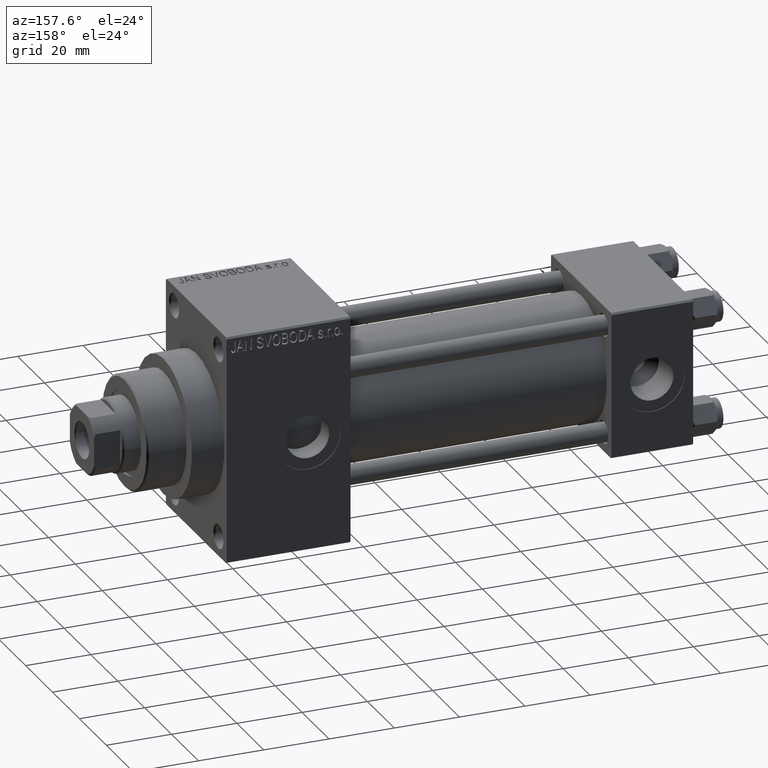
[diagram: clean part render]
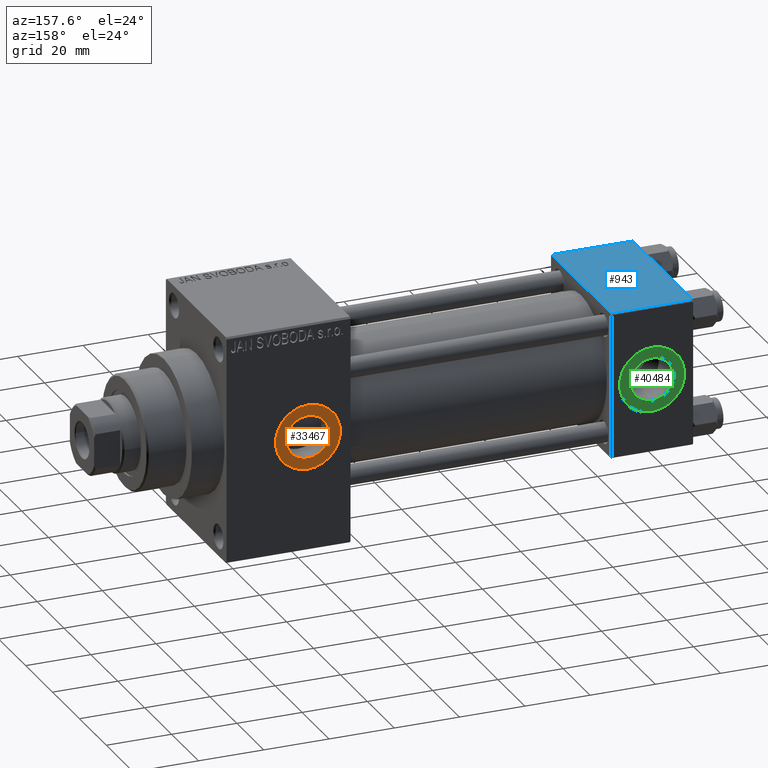
[diagram: same view with three faces highlighted in distinct colors, each labeled with its STEP entity id]
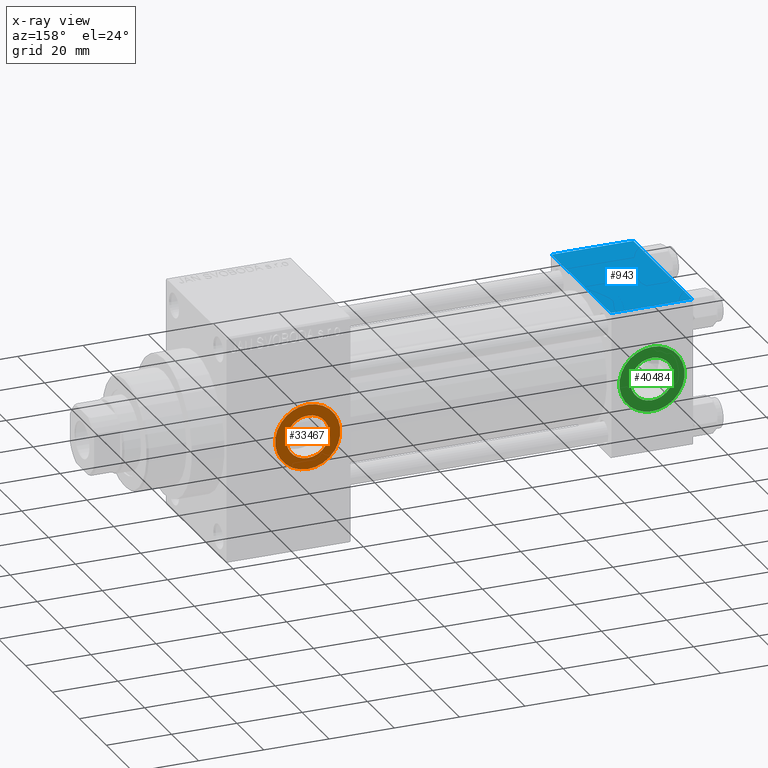
[diagram: x-ray of the same camera — body ghosted, the three highlighted faces saturated]
A machine part, auxiliary view with three faces highlighted in distinct colors.
The next image is the same camera in x-ray (body ghosted, the three faces saturated) — at least one of them is partly hidden behind the body in this view.
Their STEP definitions:

[orange] entity #33467 — the highlighted planar face has unit normal (0, 1, 0).
#175 = CIRCLE ( 'NONE', #31887, 9.999999999999994671 ) ;
#730 = VERTEX_POINT ( 'NONE', #25450 ) ;
#4194 = CARTESIAN_POINT ( 'NONE',  ( 118.0000000000000142, 22.29999999999999716, 0.000000000000000000 ) ) ;
#4254 = AXIS2_PLACEMENT_3D ( 'NONE', #10492, #18920, #37290 ) ;
#4401 = CIRCLE ( 'NONE', #27398, 6.580000000000002736 ) ;
#7020 = FACE_BOUND ( 'NONE', #15501, .T. ) ;
#7251 = AXIS2_PLACEMENT_3D ( 'NONE', #4194, #19321, #30735 ) ;
#7750 = FACE_OUTER_BOUND ( 'NONE', #36023, .T. ) ;
#8594 = EDGE_CURVE ( 'NONE', #730, #30781, #4401, .T. ) ;
#9133 = ORIENTED_EDGE ( 'NONE', *, *, #30174, .T. ) ;
#10479 = CARTESIAN_POINT ( 'NONE',  ( 118.0000000000000142, 22.29999999999999716, 6.580000000000002736 ) ) ;
#10492 = CARTESIAN_POINT ( 'NONE',  ( 118.0000000000000142, 22.29999999999999716, 0.000000000000000000 ) ) ;
#10698 = EDGE_CURVE ( 'NONE', #31324, #44649, #39338, .T. ) ;
#15501 = EDGE_LOOP ( 'NONE', ( #33674, #17588 ) ) ;
#17588 = ORIENTED_EDGE ( 'NONE', *, *, #8594, .F. ) ;
#17917 = AXIS2_PLACEMENT_3D ( 'NONE', #31061, #32263, #24582 ) ;
#18920 = DIRECTION ( 'NONE',  ( 0.000000000000000000, 1.000000000000000000, 0.000000000000000000 ) ) ;
#19041 = CARTESIAN_POINT ( 'NONE',  ( 118.0000000000000142, 22.29999999999999716, 0.000000000000000000 ) ) ;
#19044 = CARTESIAN_POINT ( 'NONE',  ( 118.0000000000000142, 22.29999999999999716, -9.999999999999994671 ) ) ;
#19321 = DIRECTION ( 'NONE',  ( 0.000000000000000000, 1.000000000000000000, 0.000000000000000000 ) ) ;
#20545 = DIRECTION ( 'NONE',  ( 0.000000000000000000, 0.000000000000000000, 1.000000000000000000 ) ) ;
#20789 = CARTESIAN_POINT ( 'NONE',  ( 118.0000000000000142, 22.29999999999999716, 0.000000000000000000 ) ) ;
#22200 = CARTESIAN_POINT ( 'NONE',  ( 118.0000000000000142, 22.29999999999999716, 9.999999999999994671 ) ) ;
#22757 = DIRECTION ( 'NONE',  ( 0.000000000000000000, 1.000000000000000000, 0.000000000000000000 ) ) ;
#24582 = DIRECTION ( 'NONE',  ( 0.000000000000000000, 0.000000000000000000, 1.000000000000000000 ) ) ;
#25450 = CARTESIAN_POINT ( 'NONE',  ( 118.0000000000000142, 22.29999999999999716, -6.580000000000002736 ) ) ;
#27398 = AXIS2_PLACEMENT_3D ( 'NONE', #19041, #22757, #34685 ) ;
#27757 = DIRECTION ( 'NONE',  ( 0.000000000000000000, 1.000000000000000000, 0.000000000000000000 ) ) ;
#30063 = EDGE_CURVE ( 'NONE', #30781, #730, #35018, .T. ) ;
#30174 = EDGE_CURVE ( 'NONE', #44649, #31324, #175, .T. ) ;
#30735 = DIRECTION ( 'NONE',  ( 0.000000000000000000, 0.000000000000000000, 1.000000000000000000 ) ) ;
#30781 = VERTEX_POINT ( 'NONE', #10479 ) ;
#31061 = CARTESIAN_POINT ( 'NONE',  ( 118.0000000000000142, 22.29999999999999716, 0.000000000000000000 ) ) ;
#31324 = VERTEX_POINT ( 'NONE', #22200 ) ;
#31887 = AXIS2_PLACEMENT_3D ( 'NONE', #20789, #27757, #20545 ) ;
#32263 = DIRECTION ( 'NONE',  ( 0.000000000000000000, 1.000000000000000000, 0.000000000000000000 ) ) ;
#33467 = ADVANCED_FACE ( 'NONE', ( #7020, #7750 ), #45222, .T. ) ;
#33656 = ORIENTED_EDGE ( 'NONE', *, *, #10698, .T. ) ;
#33674 = ORIENTED_EDGE ( 'NONE', *, *, #30063, .F. ) ;
#34685 = DIRECTION ( 'NONE',  ( 0.000000000000000000, 0.000000000000000000, 1.000000000000000000 ) ) ;
#35018 = CIRCLE ( 'NONE', #7251, 6.580000000000002736 ) ;
#36023 = EDGE_LOOP ( 'NONE', ( #33656, #9133 ) ) ;
#37290 = DIRECTION ( 'NONE',  ( 0.000000000000000000, -0.000000000000000000, 1.000000000000000000 ) ) ;
#39338 = CIRCLE ( 'NONE', #17917, 9.999999999999994671 ) ;
#44649 = VERTEX_POINT ( 'NONE', #19044 ) ;
#45222 = PLANE ( 'NONE',  #4254 ) ;

[blue] entity #943 — the highlighted planar face has unit normal (0, 0, -1).
#943 = ADVANCED_FACE ( 'NONE', ( #3356 ), #48756, .F. ) ;
#1035 = CARTESIAN_POINT ( 'NONE',  ( 25.00000000000000000, -21.99999999999997868, 22.50000000000000000 ) ) ;
#1714 = EDGE_CURVE ( 'NONE', #2446, #43139, #33952, .T. ) ;
#2446 = VERTEX_POINT ( 'NONE', #19803 ) ;
#3356 = FACE_OUTER_BOUND ( 'NONE', #43885, .T. ) ;
#4077 = CARTESIAN_POINT ( 'NONE',  ( 0.000000000000000000, 21.99999999999999289, 22.50000000000000355 ) ) ;
#5180 = VERTEX_POINT ( 'NONE', #4077 ) ;
#6374 = VECTOR ( 'NONE', #25374, 1000.000000000000000 ) ;
#7815 = CARTESIAN_POINT ( 'NONE',  ( 25.00000000000000000, 22.50000000000000000, 22.50000000000000355 ) ) ;
#8886 = ORIENTED_EDGE ( 'NONE', *, *, #24721, .T. ) ;
#10831 = AXIS2_PLACEMENT_3D ( 'NONE', #7815, #45280, #29649 ) ;
#10873 = DIRECTION ( 'NONE',  ( 0.000000000000000000, -1.000000000000000000, -7.709882115452476934E-17 ) ) ;
#12645 = DIRECTION ( 'NONE',  ( -1.000000000000000000, 0.000000000000000000, 0.000000000000000000 ) ) ;
#12891 = CARTESIAN_POINT ( 'NONE',  ( 0.000000000000000000, 21.99999999999999289, 22.50000000000000355 ) ) ;
#14323 = VECTOR ( 'NONE', #10873, 1000.000000000000000 ) ;
#14942 = CARTESIAN_POINT ( 'NONE',  ( 25.00000000000000000, 21.99999999999999289, 22.50000000000000355 ) ) ;
#18798 = CARTESIAN_POINT ( 'NONE',  ( 25.00000000000000000, -21.99999999999999289, 22.50000000000000000 ) ) ;
#19803 = CARTESIAN_POINT ( 'NONE',  ( 0.000000000000000000, -21.99999999999997868, 22.50000000000000000 ) ) ;
#22452 = ORIENTED_EDGE ( 'NONE', *, *, #1714, .T. ) ;
#23088 = ORIENTED_EDGE ( 'NONE', *, *, #28243, .T. ) ;
#23420 = EDGE_CURVE ( 'NONE', #37392, #43139, #37272, .T. ) ;
#24721 = EDGE_CURVE ( 'NONE', #37392, #5180, #39191, .T. ) ;
#25374 = DIRECTION ( 'NONE',  ( 0.000000000000000000, -1.000000000000000000, -7.709882115452476934E-17 ) ) ;
#28243 = EDGE_CURVE ( 'NONE', #5180, #2446, #40908, .T. ) ;
#29649 = DIRECTION ( 'NONE',  ( 0.000000000000000000, 1.000000000000000000, 7.709882115452476934E-17 ) ) ;
#33700 = DIRECTION ( 'NONE',  ( 1.000000000000000000, 0.000000000000000000, 0.000000000000000000 ) ) ;
#33952 = LINE ( 'NONE', #18798, #40992 ) ;
#37272 = LINE ( 'NONE', #48934, #6374 ) ;
#37392 = VERTEX_POINT ( 'NONE', #14942 ) ;
#39191 = LINE ( 'NONE', #12891, #42882 ) ;
#40908 = LINE ( 'NONE', #44626, #14323 ) ;
#40992 = VECTOR ( 'NONE', #33700, 1000.000000000000000 ) ;
#42882 = VECTOR ( 'NONE', #12645, 1000.000000000000000 ) ;
#42905 = ORIENTED_EDGE ( 'NONE', *, *, #23420, .F. ) ;
#43139 = VERTEX_POINT ( 'NONE', #1035 ) ;
#43885 = EDGE_LOOP ( 'NONE', ( #23088, #22452, #42905, #8886 ) ) ;
#44626 = CARTESIAN_POINT ( 'NONE',  ( 0.000000000000000000, 22.50000000000000000, 22.50000000000000355 ) ) ;
#45280 = DIRECTION ( 'NONE',  ( 0.000000000000000000, 7.709882115452476934E-17, -1.000000000000000000 ) ) ;
#48756 = PLANE ( 'NONE',  #10831 ) ;
#48934 = CARTESIAN_POINT ( 'NONE',  ( 25.00000000000000000, 22.50000000000000000, 22.50000000000000355 ) ) ;

[green] entity #40484 — the highlighted planar face has unit normal (0, 1, 0).
#3150 = EDGE_CURVE ( 'NONE', #38841, #45043, #10945, .T. ) ;
#3438 = DIRECTION ( 'NONE',  ( 0.000000000000000000, 1.000000000000000000, 0.000000000000000000 ) ) ;
#4350 = CARTESIAN_POINT ( 'NONE',  ( 12.50000000000000000, 22.30000000000000071, 0.000000000000000000 ) ) ;
#5554 = VERTEX_POINT ( 'NONE', #21160 ) ;
#5775 = DIRECTION ( 'NONE',  ( 0.000000000000000000, 0.000000000000000000, 1.000000000000000000 ) ) ;
#7248 = DIRECTION ( 'NONE',  ( 0.000000000000000000, 1.000000000000000000, 0.000000000000000000 ) ) ;
#7644 = DIRECTION ( 'NONE',  ( 0.000000000000000000, 0.000000000000000000, 1.000000000000000000 ) ) ;
#8305 = CARTESIAN_POINT ( 'NONE',  ( 12.50000000000000000, 22.30000000000000071, 0.000000000000000000 ) ) ;
#8591 = CIRCLE ( 'NONE', #43456, 6.579999999999998295 ) ;
#9039 = PLANE ( 'NONE',  #45790 ) ;
#10626 = CARTESIAN_POINT ( 'NONE',  ( 12.50000000000000000, 22.30000000000000071, 9.999999999999996447 ) ) ;
#10945 = CIRCLE ( 'NONE', #16514, 9.999999999999996447 ) ;
#11400 = EDGE_CURVE ( 'NONE', #41459, #5554, #11622, .T. ) ;
#11611 = CARTESIAN_POINT ( 'NONE',  ( 12.50000000000000000, 22.30000000000000071, 0.000000000000000000 ) ) ;
#11622 = CIRCLE ( 'NONE', #39359, 6.579999999999998295 ) ;
#16495 = FACE_OUTER_BOUND ( 'NONE', #40841, .T. ) ;
#16514 = AXIS2_PLACEMENT_3D ( 'NONE', #21140, #20901, #5775 ) ;
#16713 = CIRCLE ( 'NONE', #34191, 9.999999999999996447 ) ;
#16801 = ORIENTED_EDGE ( 'NONE', *, *, #45871, .F. ) ;
#16968 = CARTESIAN_POINT ( 'NONE',  ( 12.50000000000000178, 22.30000000000000071, -9.999999999999996447 ) ) ;
#19740 = FACE_BOUND ( 'NONE', #25631, .T. ) ;
#20901 = DIRECTION ( 'NONE',  ( 0.000000000000000000, 1.000000000000000000, 0.000000000000000000 ) ) ;
#21140 = CARTESIAN_POINT ( 'NONE',  ( 12.50000000000000000, 22.30000000000000071, 0.000000000000000000 ) ) ;
#21160 = CARTESIAN_POINT ( 'NONE',  ( 12.50000000000000000, 22.30000000000000071, -6.579999999999998295 ) ) ;
#25631 = EDGE_LOOP ( 'NONE', ( #29232, #16801 ) ) ;
#28307 = EDGE_CURVE ( 'NONE', #45043, #38841, #16713, .T. ) ;
#29232 = ORIENTED_EDGE ( 'NONE', *, *, #11400, .F. ) ;
#30507 = ORIENTED_EDGE ( 'NONE', *, *, #3150, .T. ) ;
#31799 = ORIENTED_EDGE ( 'NONE', *, *, #28307, .T. ) ;
#31886 = DIRECTION ( 'NONE',  ( 0.000000000000000000, 1.000000000000000000, 0.000000000000000000 ) ) ;
#34191 = AXIS2_PLACEMENT_3D ( 'NONE', #11611, #3438, #7644 ) ;
#35354 = DIRECTION ( 'NONE',  ( 0.000000000000000000, 1.000000000000000000, 0.000000000000000000 ) ) ;
#38841 = VERTEX_POINT ( 'NONE', #10626 ) ;
#39044 = CARTESIAN_POINT ( 'NONE',  ( 12.50000000000000000, 22.30000000000000071, 6.579999999999998295 ) ) ;
#39359 = AXIS2_PLACEMENT_3D ( 'NONE', #44951, #7248, #48439 ) ;
#40484 = ADVANCED_FACE ( 'NONE', ( #19740, #16495 ), #9039, .T. ) ;
#40841 = EDGE_LOOP ( 'NONE', ( #30507, #31799 ) ) ;
#41459 = VERTEX_POINT ( 'NONE', #39044 ) ;
#42816 = DIRECTION ( 'NONE',  ( 0.000000000000000000, 0.000000000000000000, 1.000000000000000000 ) ) ;
#43456 = AXIS2_PLACEMENT_3D ( 'NONE', #8305, #35354, #42816 ) ;
#44951 = CARTESIAN_POINT ( 'NONE',  ( 12.50000000000000000, 22.30000000000000071, 0.000000000000000000 ) ) ;
#45043 = VERTEX_POINT ( 'NONE', #16968 ) ;
#45790 = AXIS2_PLACEMENT_3D ( 'NONE', #4350, #31886, #46039 ) ;
#45871 = EDGE_CURVE ( 'NONE', #5554, #41459, #8591, .T. ) ;
#46039 = DIRECTION ( 'NONE',  ( 0.000000000000000000, -0.000000000000000000, 1.000000000000000000 ) ) ;
#48439 = DIRECTION ( 'NONE',  ( 0.000000000000000000, 0.000000000000000000, 1.000000000000000000 ) ) ;